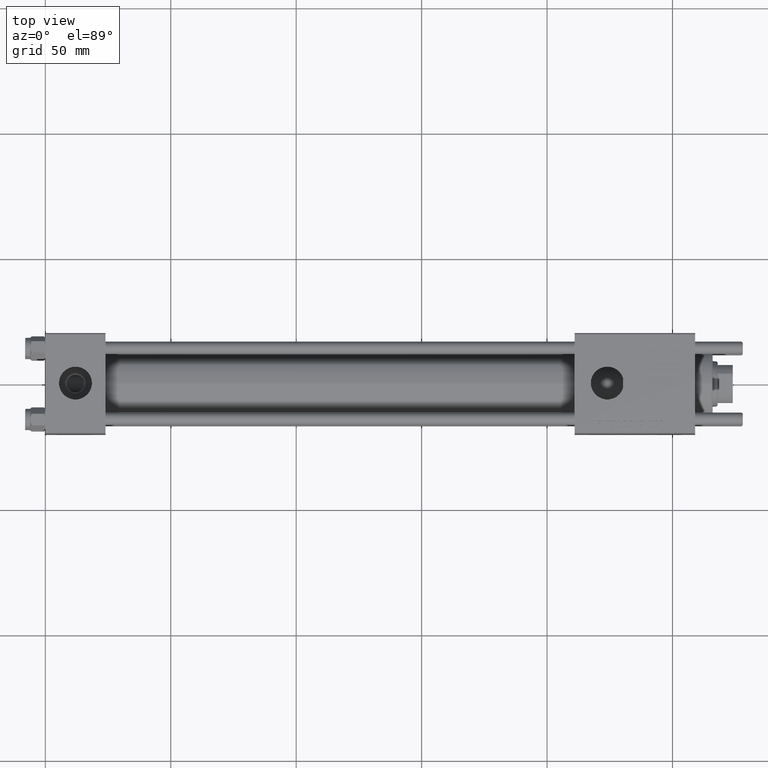
[diagram: clean part render]
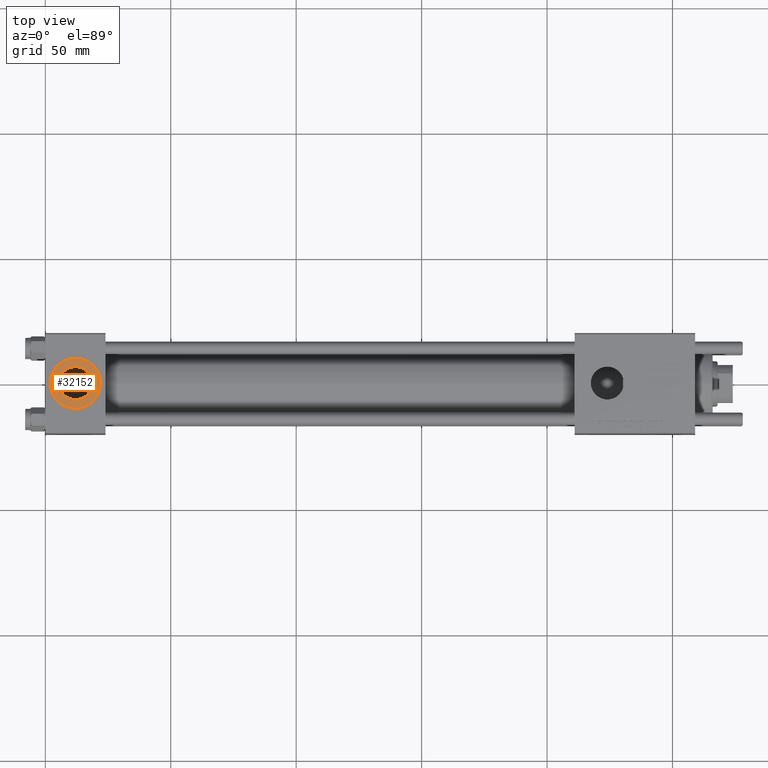
[diagram: same view with one face highlighted and labeled with its STEP entity id]
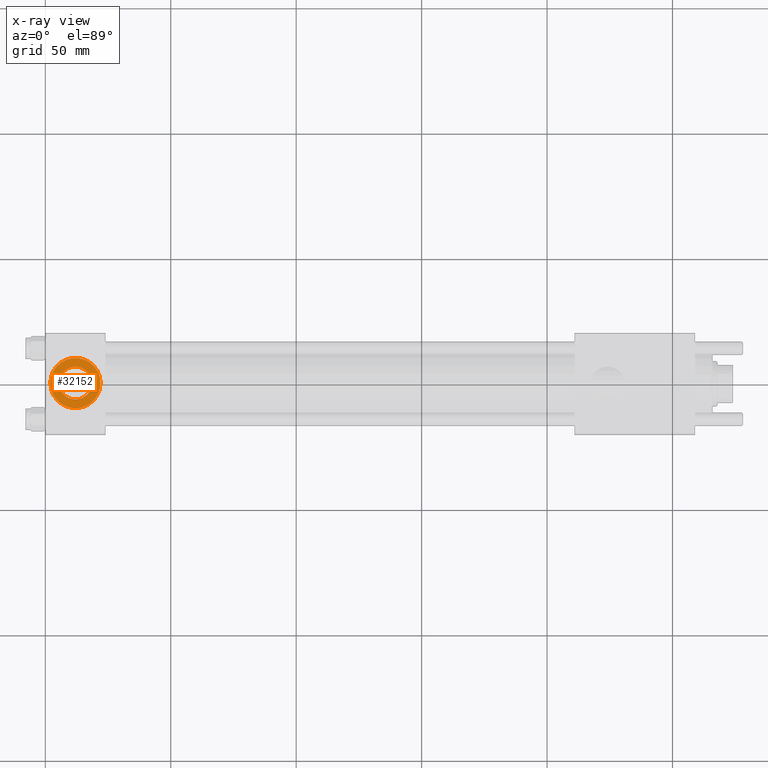
[diagram: x-ray of the same camera — body ghosted, the highlighted face saturated]
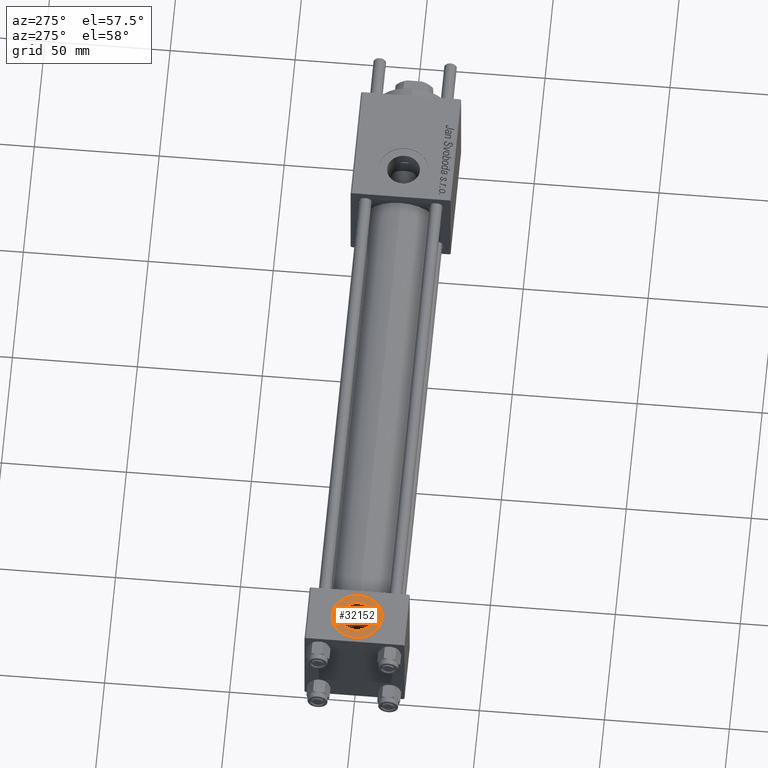
[diagram: same view with one face highlighted and labeled with its STEP entity id]
A machine part, top view. The second image highlights one B-rep face of the part: STEP entity #32152.
The next image is the same camera in x-ray: the body ghosted, the highlighted face saturated — about 0% of this face is hidden behind the body in this view.
A second angle (auxiliary view) of the same face is appended — the face is thin or edge-on in the first view.
In plain terms, the highlighted planar face has unit normal (0, 0, 1).
Its self-contained STEP definition (entity closure, byte-faithful):
#973 = AXIS2_PLACEMENT_3D ( 'NONE', #50147, #41258, #32931 ) ;
#1747 = CARTESIAN_POINT ( 'NONE',  ( 12.00000000000000000, 1.540743955509788682E-30, 19.79999999999999716 ) ) ;
#5883 = CIRCLE ( 'NONE', #48875, 9.999999999999998224 ) ;
#7050 = EDGE_CURVE ( 'NONE', #50819, #14309, #43901, .T. ) ;
#7893 = ORIENTED_EDGE ( 'NONE', *, *, #26323, .T. ) ;
#8222 = ORIENTED_EDGE ( 'NONE', *, *, #7050, .F. ) ;
#9400 = DIRECTION ( 'NONE',  ( 0.000000000000000000, 0.000000000000000000, 1.000000000000000000 ) ) ;
#9602 = ORIENTED_EDGE ( 'NONE', *, *, #48427, .T. ) ;
#9943 = AXIS2_PLACEMENT_3D ( 'NONE', #1747, #32404, #50451 ) ;
#12594 = CARTESIAN_POINT ( 'NONE',  ( 22.00000000000000000, 1.540743955509788682E-30, 19.79999999999999716 ) ) ;
#13798 = CARTESIAN_POINT ( 'NONE',  ( 12.00000000000000000, 1.540743955509788682E-30, 19.79999999999999716 ) ) ;
#14309 = VERTEX_POINT ( 'NONE', #38873 ) ;
#15286 = VERTEX_POINT ( 'NONE', #12594 ) ;
#16204 = EDGE_LOOP ( 'NONE', ( #8222, #43699 ) ) ;
#18088 = PLANE ( 'NONE',  #35743 ) ;
#20332 = VERTEX_POINT ( 'NONE', #33428 ) ;
#22376 = FACE_BOUND ( 'NONE', #16204, .T. ) ;
#26323 = EDGE_CURVE ( 'NONE', #15286, #20332, #34631, .T. ) ;
#26948 = DIRECTION ( 'NONE',  ( 1.000000000000000000, 0.000000000000000000, -0.000000000000000000 ) ) ;
#31268 = DIRECTION ( 'NONE',  ( 0.000000000000000000, 0.000000000000000000, 1.000000000000000000 ) ) ;
#32152 = ADVANCED_FACE ( 'NONE', ( #22376, #39881 ), #18088, .T. ) ;
#32162 = EDGE_CURVE ( 'NONE', #14309, #50819, #42157, .T. ) ;
#32404 = DIRECTION ( 'NONE',  ( 0.000000000000000000, 0.000000000000000000, 1.000000000000000000 ) ) ;
#32846 = CARTESIAN_POINT ( 'NONE',  ( 12.00000000000000000, 1.540743955509788682E-30, 19.79999999999999716 ) ) ;
#32931 = DIRECTION ( 'NONE',  ( 1.000000000000000000, 0.000000000000000000, 0.000000000000000000 ) ) ;
#33428 = CARTESIAN_POINT ( 'NONE',  ( 2.000000000000003553, 1.224646799147354440E-15, 19.79999999999999716 ) ) ;
#34631 = CIRCLE ( 'NONE', #9943, 9.999999999999998224 ) ;
#35743 = AXIS2_PLACEMENT_3D ( 'NONE', #13798, #31268, #26948 ) ;
#35804 = CARTESIAN_POINT ( 'NONE',  ( 18.57999999999999829, 1.540743955509788682E-30, 19.79999999999999716 ) ) ;
#37158 = DIRECTION ( 'NONE',  ( 1.000000000000000000, 0.000000000000000000, 0.000000000000000000 ) ) ;
#38873 = CARTESIAN_POINT ( 'NONE',  ( 5.420000000000000817, 8.058175938389596335E-16, 19.79999999999999716 ) ) ;
#39881 = FACE_OUTER_BOUND ( 'NONE', #50886, .T. ) ;
#41258 = DIRECTION ( 'NONE',  ( 0.000000000000000000, 0.000000000000000000, 1.000000000000000000 ) ) ;
#42157 = CIRCLE ( 'NONE', #973, 6.579999999999999183 ) ;
#42984 = AXIS2_PLACEMENT_3D ( 'NONE', #49203, #9400, #55909 ) ;
#43699 = ORIENTED_EDGE ( 'NONE', *, *, #32162, .F. ) ;
#43901 = CIRCLE ( 'NONE', #42984, 6.579999999999999183 ) ;
#48427 = EDGE_CURVE ( 'NONE', #20332, #15286, #5883, .T. ) ;
#48875 = AXIS2_PLACEMENT_3D ( 'NONE', #32846, #54938, #37158 ) ;
#49203 = CARTESIAN_POINT ( 'NONE',  ( 12.00000000000000000, 1.540743955509788682E-30, 19.79999999999999716 ) ) ;
#50147 = CARTESIAN_POINT ( 'NONE',  ( 12.00000000000000000, 1.540743955509788682E-30, 19.79999999999999716 ) ) ;
#50451 = DIRECTION ( 'NONE',  ( 1.000000000000000000, 0.000000000000000000, 0.000000000000000000 ) ) ;
#50819 = VERTEX_POINT ( 'NONE', #35804 ) ;
#50886 = EDGE_LOOP ( 'NONE', ( #7893, #9602 ) ) ;
#54938 = DIRECTION ( 'NONE',  ( 0.000000000000000000, 0.000000000000000000, 1.000000000000000000 ) ) ;
#55909 = DIRECTION ( 'NONE',  ( 1.000000000000000000, 0.000000000000000000, 0.000000000000000000 ) ) ;